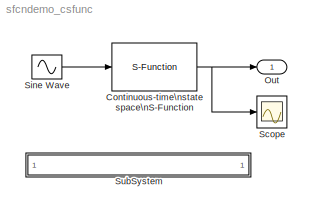
MODEL sfcndemo_csfunc
KIND model
BLOCK [S-Function] Continuous-time\nstate space\nS-Function
  FunctionName = csfunc
  MaskDescription = This is a S-function that does the continuous state space system.
  MaskDisplay = disp('x'' = A*X + B*U\\n Y = C*X + D*U ');
  MaskIconFrame = on
  MaskIconOpaque = on
  MaskIconRotate = none
  MaskIconUnits = autoscale
  MaskType = S-function: csfunc
  Ports = [1, 1]
BLOCK [Outport] Out
  IconDisplay = Port number
  InitialOutput = 0
BLOCK [Scope] Scope
  DataFormat = StructureWithTime
  NumInputPorts = 1
  Ports = [1]
  TimeRange = 10
  YMax = 500
  YMin = -200
BLOCK [Sin] Sine Wave
  Amplitude = [1 2]
  Ports = [0, 1]
  SampleTime = 0
BLOCK [SubSystem] SubSystem
  MaskDisplay = disp('matlabroot<path>');
  MaskIconFrame = on
  MaskIconOpaque = on
  MaskIconRotate = none
  MaskIconUnits = autoscale
  MinAlgLoopOccurrences = off
  OpenFcn = edit(fullfile(matlabroot,'simulink','src','csfunc.c'))
  Ports = []
  PropExecContextAcrossSSBoundary = on
  RTWSystemCode = Auto
  TreatAsAtomicUnit = off
NET Continuous-time\nstate space\nS-Function:1 -> Out:1, Scope:1
LINE Sine Wave:1 -> Continuous-time\nstate space\nS-Function:1
note: NET lines group one-source signal fan-out (src -> all destinations, sorted); 1:1 wires keep LINE
note: 1 file-system path scrubbed to <path> (not preserved elsewhere — flat text is the only slx artifact)
